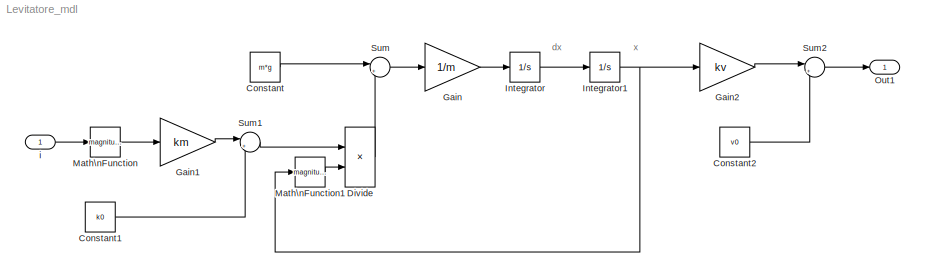
MODEL Levitatore_mdl
KIND model
BLOCK [Constant] Constant
  OutDataType = sfix(16)
  OutScaling = 2^0
  Value = m*g
BLOCK [Constant] Constant1
  OutDataType = sfix(16)
  OutScaling = 2^0
  Value = k0
BLOCK [Constant] Constant2
  OutDataType = sfix(16)
  OutScaling = 2^0
  Value = v0
BLOCK [Product] Divide
  InputSameDT = off
  Inputs = */
  OutDataType = sfix(16)
  OutDataTypeMode = Inherit via internal rule
  OutDataTypeStr = Inherit: Inherit via internal rule
  OutScaling = 2^-10
  Ports = [2, 1]
  RndMeth = Floor
  SaturateOnIntegerOverflow = off
BLOCK [Gain] Gain
  Gain = 1/m
  OutDataType = sfix(16)
  OutDataTypeMode = Inherit via internal rule
  OutDataTypeStr = Inherit: Inherit via internal rule
  OutScaling = 2^0
  ParamDataTypeStr = Inherit: Inherit via internal rule
  ParameterDataType = sfix(16)
  ParameterDataTypeMode = Inherit via internal rule
  ParameterScaling = 2^0
  SaturateOnIntegerOverflow = off
BLOCK [Gain] Gain1
  Gain = km
  OutDataType = sfix(16)
  OutDataTypeMode = Inherit via internal rule
  OutDataTypeStr = Inherit: Inherit via internal rule
  OutScaling = 2^0
  ParamDataTypeStr = Inherit: Inherit via internal rule
  ParameterDataType = sfix(16)
  ParameterDataTypeMode = Inherit via internal rule
  ParameterScaling = 2^0
  SaturateOnIntegerOverflow = off
BLOCK [Gain] Gain2
  Gain = kv
  OutDataType = sfix(16)
  OutDataTypeMode = Inherit via internal rule
  OutDataTypeStr = Inherit: Inherit via internal rule
  OutScaling = 2^0
  ParamDataTypeStr = Inherit: Inherit via internal rule
  ParameterDataType = sfix(16)
  ParameterDataTypeMode = Inherit via internal rule
  ParameterScaling = 2^0
  SaturateOnIntegerOverflow = off
BLOCK [Integrator] Integrator
  InitialCondition = dx0
  Ports = [1, 1]
BLOCK [Integrator] Integrator1
  InitialCondition = x0
  Ports = [1, 1]
BLOCK [Math] Math\nFunction
  Operator = magnitude^2
  OutDataType = sfix(16)
  OutScaling = 2^0
  Ports = [1, 1]
BLOCK [Math] Math\nFunction1
  Operator = magnitude^2
  OutDataType = sfix(16)
  OutScaling = 2^0
  Ports = [1, 1]
BLOCK [Outport] Out1
  IconDisplay = Port number
  OutDataType = sfix(16)
  OutScaling = 2^0
BLOCK [Sum] Sum
  IconShape = round
  InputSameDT = off
  Inputs = |+-
  OutDataType = sfix(16)
  OutDataTypeMode = Inherit via internal rule
  OutDataTypeStr = Inherit: Inherit via internal rule
  OutScaling = 2^0
  Ports = [2, 1]
  SaturateOnIntegerOverflow = off
BLOCK [Sum] Sum1
  IconShape = round
  InputSameDT = off
  Inputs = |++
  OutDataType = sfix(16)
  OutDataTypeMode = Inherit via internal rule
  OutDataTypeStr = Inherit: Inherit via internal rule
  OutScaling = 2^0
  Ports = [2, 1]
  SaturateOnIntegerOverflow = off
BLOCK [Sum] Sum2
  IconShape = round
  InputSameDT = off
  Inputs = |++
  OutDataType = sfix(16)
  OutDataTypeMode = Inherit via internal rule
  OutDataTypeStr = Inherit: Inherit via internal rule
  OutScaling = 2^0
  Ports = [2, 1]
  SaturateOnIntegerOverflow = off
BLOCK [Inport] i
  IconDisplay = Port number
  OutDataType = sfix(16)
  OutScaling = 2^0
ANNOTATION (root): dx
ANNOTATION (root): x
LINE Constant1:1 -> Sum1:2
LINE Constant2:1 -> Sum2:2
LINE Constant:1 -> Sum:1
LINE Divide:1 -> Sum:2
LINE Gain1:1 -> Sum1:1
LINE Gain2:1 -> Sum2:1
LINE Gain:1 -> Integrator:1
NET Integrator1:1 -> Gain2:1, Math\nFunction1:1
LINE Integrator:1 -> Integrator1:1
LINE Math\nFunction1:1 -> Divide:2
LINE Math\nFunction:1 -> Gain1:1
LINE Sum1:1 -> Divide:1
LINE Sum2:1 -> Out1:1
LINE Sum:1 -> Gain:1
LINE i:1 -> Math\nFunction:1
note: NET lines group one-source signal fan-out (src -> all destinations, sorted); 1:1 wires keep LINE
